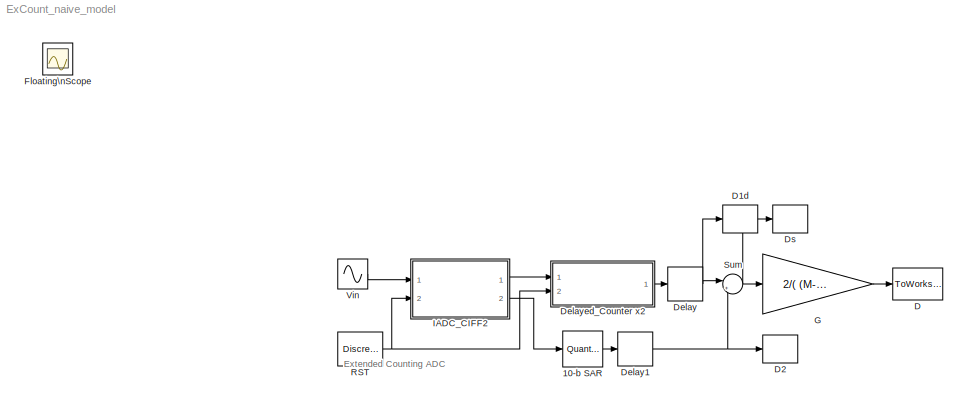
MODEL ExCount_naive_model
KIND model
BLOCK [Quantizer] 10-b SAR
  LinearizeAsGain = off
  QuantizationInterval = vfs/1024
  SID = 13159
BLOCK [ToWorkspace] D
  MaxDataPoints = inf
  Ports = [1]
  SID = 13068
  SampleTime = -1
  VariableName = ADCout
BLOCK [ToWorkspace] D1d
  MaxDataPoints = inf
  Ports = [1]
  SID = 13181
  SampleTime = -1
  VariableName = D1d
BLOCK [ToWorkspace] D2
  MaxDataPoints = inf
  Ports = [1]
  SID = 13170
  SampleTime = -1
  VariableName = D2
BLOCK [Delay] Delay
  DelayLength = 1
  InitialCondition = 0
  InputPortMap = u0
  Ports = [1, 1]
  SID = 13179
BLOCK [Delay] Delay1
  DelayLength = 1
  InitialCondition = 0
  InputPortMap = u0
  Ports = [1, 1]
  SID = 13180
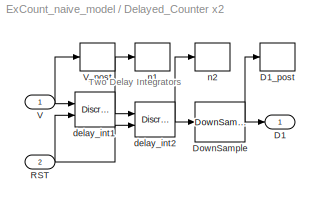
BLOCK [SubSystem] Delayed_Counter x2
  Ports = [2, 1]
  RequestExecContextInheritance = off
  SID = 13048
BLOCK [Outport] Delayed_Counter x2/D1
  IconDisplay = Port number
  SID = 13066
BLOCK [ToWorkspace] Delayed_Counter x2/D1_post
  MaxDataPoints = inf
  Ports = [1]
  SID = 13178
  SampleTime = -1
  VariableName = D1
BLOCK [DownSample] Delayed_Counter x2/DownSample
  InputProcessing = Elements as channels (sample based)
  N = OSR
  RateOptions = Allow multirate processing
  SID = 13051
  phase = OSR-1
BLOCK [Inport] Delayed_Counter x2/RST
  IconDisplay = Port number
  Port = 2
  SID = 13050
BLOCK [Inport] Delayed_Counter x2/V
  IconDisplay = Port number
  SID = 13049
BLOCK [ToWorkspace] Delayed_Counter x2/V_post
  MaxDataPoints = inf
  Ports = [1]
  SID = 13175
  SampleTime = -1
  VariableName = V
BLOCK [DiscreteFilter] Delayed_Counter x2/delay_int1
  Denominator = [1 -1]
  ExternalReset = Rising
  InputPortMap = u0,r7
  Numerator = [0 1]
  Ports = [2, 1]
  SID = 13173
BLOCK [DiscreteFilter] Delayed_Counter x2/delay_int2
  Denominator = [1 -1]
  ExternalReset = Rising
  InputPortMap = u0,r7
  Numerator = [0 1]
  Ports = [2, 1]
  SID = 13174
BLOCK [ToWorkspace] Delayed_Counter x2/n1
  MaxDataPoints = inf
  Ports = [1]
  SID = 13176
  SampleTime = -1
  VariableName = n1
BLOCK [ToWorkspace] Delayed_Counter x2/n2
  MaxDataPoints = inf
  Ports = [1]
  SID = 13177
  SampleTime = -1
  VariableName = n2
BLOCK [ToWorkspace] Ds
  MaxDataPoints = inf
  Ports = [1]
  SID = 13183
  SampleTime = -1
  VariableName = Ds
BLOCK [Scope] Floating\nScope
  Floating = off
  IOType = viewer
  NumInputPorts = 1
  Ports = []
  SID = 82
  ScopeSpecificationString = Simulink.scopes.TimeScopeBlockCfg('CurrentConfiguration', extmgr.ConfigurationSet(extmgr.Configuration('Core','General UI',true),extmgr.Configuration('Core','Source UI',true),extmgr.Configuration('Sources','WiredSimulink',true,'DataLoggingSaveFormat','StructureWithTime','DataLoggingLimitDataPoints',true,'DataLoggingDecimation','1','DataLoggingDecimateData',true),extmgr.Configuration('Visuals','Tim...<+872ch>
BLOCK [Gain] G
  Gain = 2/( (M-1)*(M-2) )
  OutDataTypeStr = Inherit: Inherit via internal rule
  ParamDataTypeStr = Inherit: Inherit via internal rule
  SID = 13070
  SaturateOnIntegerOverflow = off
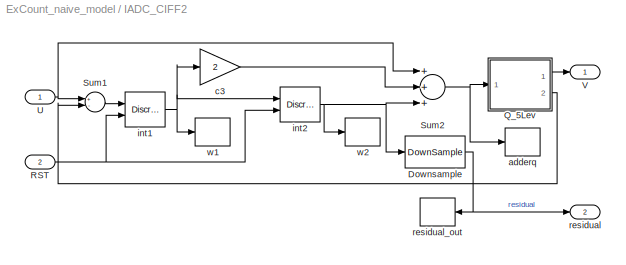
BLOCK [SubSystem] IADC_CIFF2
  Ports = [2, 2]
  RequestExecContextInheritance = off
  SID = 13072
BLOCK [DownSample] IADC_CIFF2/Downsample
  InputProcessing = Elements as channels (sample based)
  N = OSR
  RateOptions = Allow multirate processing
  SID = 13075
  phase = OSR-1
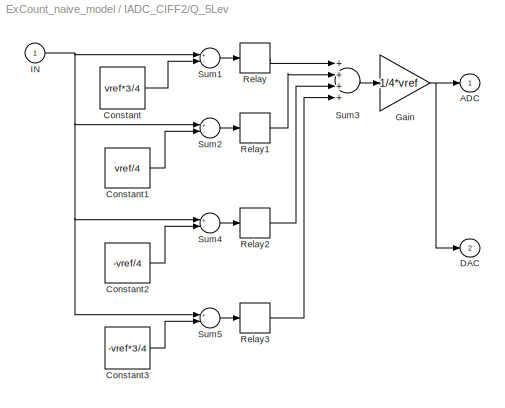
BLOCK [SubSystem] IADC_CIFF2/Q_5Lev
  Ports = [1, 2]
  RequestExecContextInheritance = off
  SID = 13100
BLOCK [Outport] IADC_CIFF2/Q_5Lev/ADC
  IconDisplay = Port number
  SID = 13122
BLOCK [Constant] IADC_CIFF2/Q_5Lev/Constant
  SID = 13102
  Value = vref*3/4
BLOCK [Constant] IADC_CIFF2/Q_5Lev/Constant1
  SID = 13103
  Value = vref/4
BLOCK [Constant] IADC_CIFF2/Q_5Lev/Constant2
  SID = 13104
  Value = -vref/4
BLOCK [Constant] IADC_CIFF2/Q_5Lev/Constant3
  SID = 13105
  Value = -vref*3/4
BLOCK [Outport] IADC_CIFF2/Q_5Lev/DAC
  IconDisplay = Port number
  Port = 2
  SID = 13123
BLOCK [Gain] IADC_CIFF2/Q_5Lev/Gain
  Gain = 1/4*vref
  OutDataTypeStr = Inherit: Inherit via internal rule
  ParamDataTypeStr = Inherit: Inherit via internal rule
  SID = 13106
  SaturateOnIntegerOverflow = off
BLOCK [Inport] IADC_CIFF2/Q_5Lev/IN
  IconDisplay = Port number
  SID = 13101
BLOCK [Relay] IADC_CIFF2/Q_5Lev/Relay
  OffOutputValue = -1
  SID = 13112
  SampleTime = tclk
BLOCK [Relay] IADC_CIFF2/Q_5Lev/Relay1
  OffOutputValue = -1
  SID = 13113
  SampleTime = tclk
BLOCK [Relay] IADC_CIFF2/Q_5Lev/Relay2
  OffOutputValue = -1
  SID = 13114
  SampleTime = tclk
BLOCK [Relay] IADC_CIFF2/Q_5Lev/Relay3
  OffOutputValue = -1
  SID = 13115
  SampleTime = tclk
BLOCK [Sum] IADC_CIFF2/Q_5Lev/Sum1
  Inputs = +-
  Ports = [2, 1]
  SID = 13116
BLOCK [Sum] IADC_CIFF2/Q_5Lev/Sum2
  Inputs = +-
  Ports = [2, 1]
  SID = 13117
BLOCK [Sum] IADC_CIFF2/Q_5Lev/Sum3
  Inputs = ++++
  Ports = [4, 1]
  SID = 13118
BLOCK [Sum] IADC_CIFF2/Q_5Lev/Sum4
  Inputs = +-
  Ports = [2, 1]
  SID = 13119
BLOCK [Sum] IADC_CIFF2/Q_5Lev/Sum5
  Inputs = +-
  Ports = [2, 1]
  SID = 13120
BLOCK [Inport] IADC_CIFF2/RST
  IconDisplay = Port number
  Port = 2
  SID = 13074
BLOCK [Sum] IADC_CIFF2/Sum1
  Inputs = +-
  Ports = [2, 1]
  SID = 13125
BLOCK [Sum] IADC_CIFF2/Sum2
  Inputs = +++
  Ports = [3, 1]
  SID = 13126
BLOCK [Inport] IADC_CIFF2/U
  IconDisplay = Port number
  SID = 13073
BLOCK [Outport] IADC_CIFF2/V
  IconDisplay = Port number
  SID = 13157
BLOCK [ToWorkspace] IADC_CIFF2/adderq
  MaxDataPoints = inf
  Ports = [1]
  SID = 13127
  SampleTime = -1
  VariableName = adderq
BLOCK [Gain] IADC_CIFF2/c3
  Gain = 2
  SID = 13130
BLOCK [DiscreteFilter] IADC_CIFF2/int1
  Denominator = [1 -1]
  ExternalReset = Rising
  InputPortMap = u0,r7
  Numerator = [0 1]
  Ports = [2, 1]
  SID = 13165
BLOCK [DiscreteFilter] IADC_CIFF2/int2
  Denominator = [1 -1]
  ExternalReset = Rising
  InputPortMap = u0,r7
  Numerator = [0 1]
  Ports = [2, 1]
  SID = 13172
BLOCK [Outport] IADC_CIFF2/residual
  IconDisplay = Port number
  Port = 2
  SID = 13158
BLOCK [ToWorkspace] IADC_CIFF2/residual_out
  MaxDataPoints = inf
  Ports = [1]
  SID = 13156
  SampleTime = -1
  VariableName = residual
BLOCK [ToWorkspace] IADC_CIFF2/w1
  MaxDataPoints = inf
  Ports = [1]
  SID = 13144
  SampleTime = -1
  VariableName = w1
BLOCK [ToWorkspace] IADC_CIFF2/w2
  MaxDataPoints = inf
  Ports = [1]
  SID = 13154
  SampleTime = -1
  VariableName = w2
BLOCK [DiscretePulseGenerator] RST
  Period = OSR
  Ports = [0, 1]
  SID = 13160
  SampleTime = tclk
BLOCK [Sum] Sum
  IconShape = round
  InputSameDT = off
  Inputs = |++
  OutDataTypeStr = Inherit: Inherit via internal rule
  Ports = [2, 1]
  SID = 13162
  SaturateOnIntegerOverflow = off
BLOCK [Sin] Vin
  Amplitude = vin_amp
  Frequency = fsig*2*pi
  Ports = [0, 1]
  SID = 13161
  SampleTime = tclk
ANNOTATION (root): Extended Counting ADC
ANNOTATION Delayed_Counter x2: Two Delay Integrators
LINE 10-b SAR:1 -> Delay1:1
NET Delay1:1 -> D2:1, Sum:2
NET Delay:1 -> D1d:1, Sum:1
NET Delayed_Counter x2/DownSample:1 -> Delayed_Counter x2/D1:1, Delayed_Counter x2/D1_post:1
NET Delayed_Counter x2/RST:1 -> Delayed_Counter x2/delay_int1:2, Delayed_Counter x2/delay_int2:2
NET Delayed_Counter x2/V:1 -> Delayed_Counter x2/V_post:1, Delayed_Counter x2/delay_int1:1
NET Delayed_Counter x2/delay_int1:1 -> Delayed_Counter x2/delay_int2:1, Delayed_Counter x2/n1:1
NET Delayed_Counter x2/delay_int2:1 -> Delayed_Counter x2/DownSample:1, Delayed_Counter x2/n2:1
LINE Delayed_Counter x2:1 -> Delay:1
LINE G:1 -> D:1
NET IADC_CIFF2/Downsample:1 -> IADC_CIFF2/residual:1, IADC_CIFF2/residual_out:1
LINE IADC_CIFF2/Q_5Lev/Constant1:1 -> IADC_CIFF2/Q_5Lev/Sum2:2
LINE IADC_CIFF2/Q_5Lev/Constant2:1 -> IADC_CIFF2/Q_5Lev/Sum4:2
LINE IADC_CIFF2/Q_5Lev/Constant3:1 -> IADC_CIFF2/Q_5Lev/Sum5:2
LINE IADC_CIFF2/Q_5Lev/Constant:1 -> IADC_CIFF2/Q_5Lev/Sum1:2
NET IADC_CIFF2/Q_5Lev/Gain:1 -> IADC_CIFF2/Q_5Lev/ADC:1, IADC_CIFF2/Q_5Lev/DAC:1
NET IADC_CIFF2/Q_5Lev/IN:1 -> IADC_CIFF2/Q_5Lev/Sum1:1, IADC_CIFF2/Q_5Lev/Sum2:1, IADC_CIFF2/Q_5Lev/Sum4:1, IADC_CIFF2/Q_5Lev/Sum5:1
LINE IADC_CIFF2/Q_5Lev/Relay1:1 -> IADC_CIFF2/Q_5Lev/Sum3:2
LINE IADC_CIFF2/Q_5Lev/Relay2:1 -> IADC_CIFF2/Q_5Lev/Sum3:3
LINE IADC_CIFF2/Q_5Lev/Relay3:1 -> IADC_CIFF2/Q_5Lev/Sum3:4
LINE IADC_CIFF2/Q_5Lev/Relay:1 -> IADC_CIFF2/Q_5Lev/Sum3:1
LINE IADC_CIFF2/Q_5Lev/Sum1:1 -> IADC_CIFF2/Q_5Lev/Relay:1
LINE IADC_CIFF2/Q_5Lev/Sum2:1 -> IADC_CIFF2/Q_5Lev/Relay1:1
LINE IADC_CIFF2/Q_5Lev/Sum3:1 -> IADC_CIFF2/Q_5Lev/Gain:1
LINE IADC_CIFF2/Q_5Lev/Sum4:1 -> IADC_CIFF2/Q_5Lev/Relay2:1
LINE IADC_CIFF2/Q_5Lev/Sum5:1 -> IADC_CIFF2/Q_5Lev/Relay3:1
LINE IADC_CIFF2/Q_5Lev:1 -> IADC_CIFF2/V:1
LINE IADC_CIFF2/Q_5Lev:2 -> IADC_CIFF2/Sum1:2
NET IADC_CIFF2/RST:1 -> IADC_CIFF2/int1:2, IADC_CIFF2/int2:2
LINE IADC_CIFF2/Sum1:1 -> IADC_CIFF2/int1:1
NET IADC_CIFF2/Sum2:1 -> IADC_CIFF2/Q_5Lev:1, IADC_CIFF2/adderq:1
NET IADC_CIFF2/U:1 -> IADC_CIFF2/Sum1:1, IADC_CIFF2/Sum2:1
LINE IADC_CIFF2/c3:1 -> IADC_CIFF2/Sum2:2
NET IADC_CIFF2/int1:1 -> IADC_CIFF2/c3:1, IADC_CIFF2/int2:1, IADC_CIFF2/w1:1
NET IADC_CIFF2/int2:1 -> IADC_CIFF2/Downsample:1, IADC_CIFF2/Sum2:3, IADC_CIFF2/w2:1
LINE IADC_CIFF2:1 -> Delayed_Counter x2:1
LINE IADC_CIFF2:2 -> 10-b SAR:1
NET RST:1 -> Delayed_Counter x2:2, IADC_CIFF2:2
NET Sum:1 -> Ds:1, G:1
LINE Vin:1 -> IADC_CIFF2:1
note: NET lines group one-source signal fan-out (src -> all destinations, sorted); 1:1 wires keep LINE
